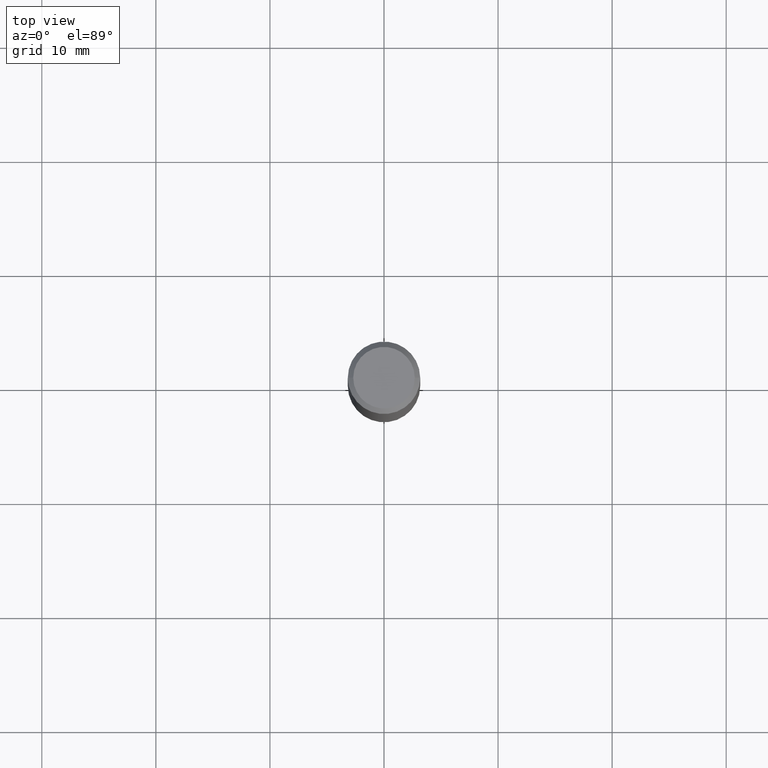
[diagram: clean part render]
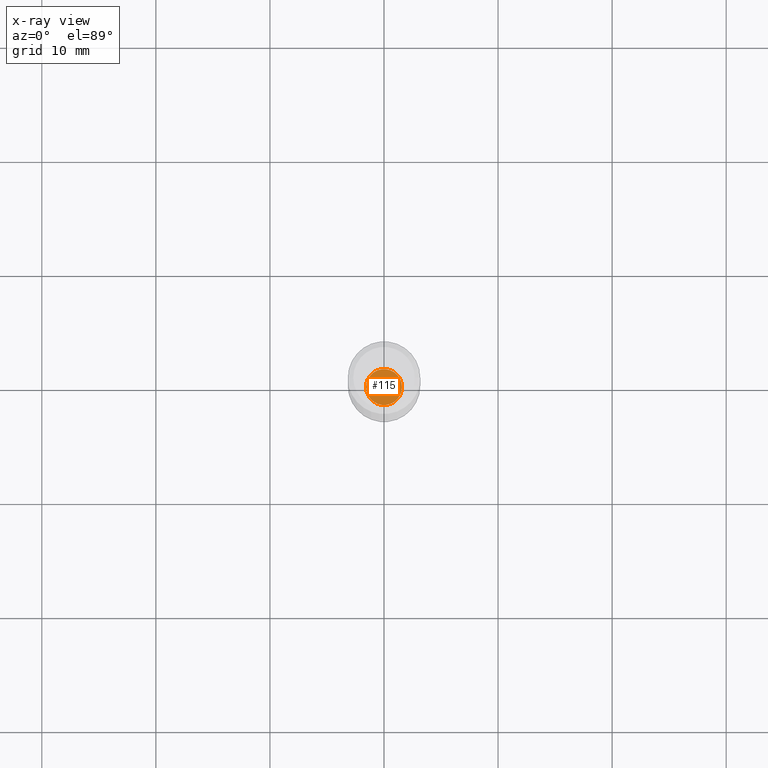
[diagram: x-ray — body ghosted, one internal face saturated and labeled with its STEP entity id]
A machine part, top view, then the same camera in x-ray: the body is ghosted and one INTERNAL B-rep face — a face not visible from any outside direction — is saturated and labeled: STEP entity #115.
In plain terms, the highlighted planar face has unit normal (-0, 0, 1).
Its self-contained STEP definition (entity closure, byte-faithful):
#4 = VERTEX_POINT ( 'NONE', #14 ) ;
#12 = DIRECTION ( 'NONE',  ( -2.445468806185136597E-29, 3.491481338843145583E-15, 1.000000000000000000 ) ) ;
#14 = CARTESIAN_POINT ( 'NONE',  ( 0.06199999999999999956, -6.979471196347447369E-15, -1.875000000000000000 ) ) ;
#24 = CARTESIAN_POINT ( 'NONE',  ( 4.585254011597131119E-29, -6.546527510330898707E-15, -1.875000000000000000 ) ) ;
#45 = CIRCLE ( 'NONE', #69, 0.06199999999999999956 ) ;
#69 = AXIS2_PLACEMENT_3D ( 'NONE', #352, #12, #174 ) ;
#88 = ORIENTED_EDGE ( 'NONE', *, *, #443, .F. ) ;
#108 = DIRECTION ( 'NONE',  ( 1.000000000000000000, -6.982962677686265922E-15, 4.876176775795935793E-29 ) ) ;
#115 = ADVANCED_FACE ( 'NONE', ( #146 ), #374, .F. ) ;
#146 = FACE_OUTER_BOUND ( 'NONE', #315, .T. ) ;
#174 = DIRECTION ( 'NONE',  ( 1.000000000000000000, -6.982962677686270655E-15, 0.000000000000000000 ) ) ;
#215 = CARTESIAN_POINT ( 'NONE',  ( -0.06199999999999999956, -6.103341786985525788E-15, -1.875000000000000000 ) ) ;
#243 = AXIS2_PLACEMENT_3D ( 'NONE', #335, #300, #108 ) ;
#251 = EDGE_CURVE ( 'NONE', #4, #459, #349, .T. ) ;
#270 = AXIS2_PLACEMENT_3D ( 'NONE', #24, #327, #399 ) ;
#300 = DIRECTION ( 'NONE',  ( -2.438088387897960049E-29, 3.491481338843145188E-15, 1.000000000000000000 ) ) ;
#315 = EDGE_LOOP ( 'NONE', ( #424, #88 ) ) ;
#327 = DIRECTION ( 'NONE',  ( -2.445468806185136597E-29, 3.491481338843145583E-15, 1.000000000000000000 ) ) ;
#335 = CARTESIAN_POINT ( 'NONE',  ( 4.585254011597131119E-29, -6.546527510330898707E-15, -1.875000000000000000 ) ) ;
#349 = CIRCLE ( 'NONE', #270, 0.06199999999999999956 ) ;
#352 = CARTESIAN_POINT ( 'NONE',  ( 4.585254011597131119E-29, -6.546527510330898707E-15, -1.875000000000000000 ) ) ;
#374 = PLANE ( 'NONE',  #243 ) ;
#399 = DIRECTION ( 'NONE',  ( 1.000000000000000000, -6.982962677686270655E-15, 0.000000000000000000 ) ) ;
#424 = ORIENTED_EDGE ( 'NONE', *, *, #251, .F. ) ;
#443 = EDGE_CURVE ( 'NONE', #459, #4, #45, .T. ) ;
#459 = VERTEX_POINT ( 'NONE', #215 ) ;